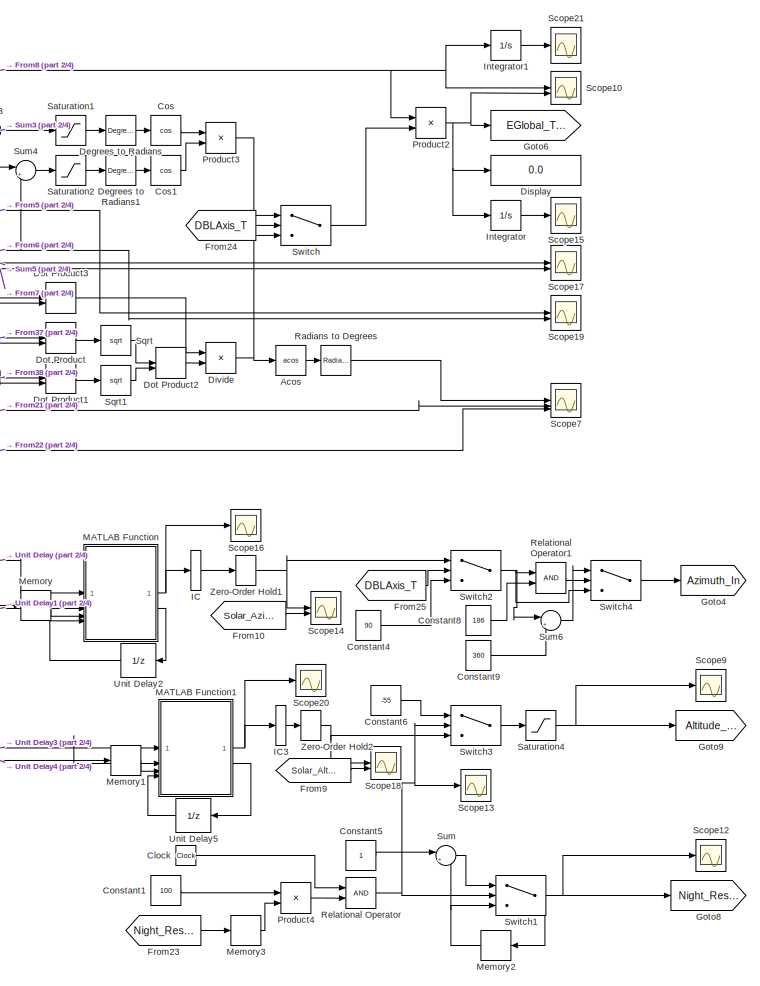
[diagram: root canvas - part 1/4, top right region]
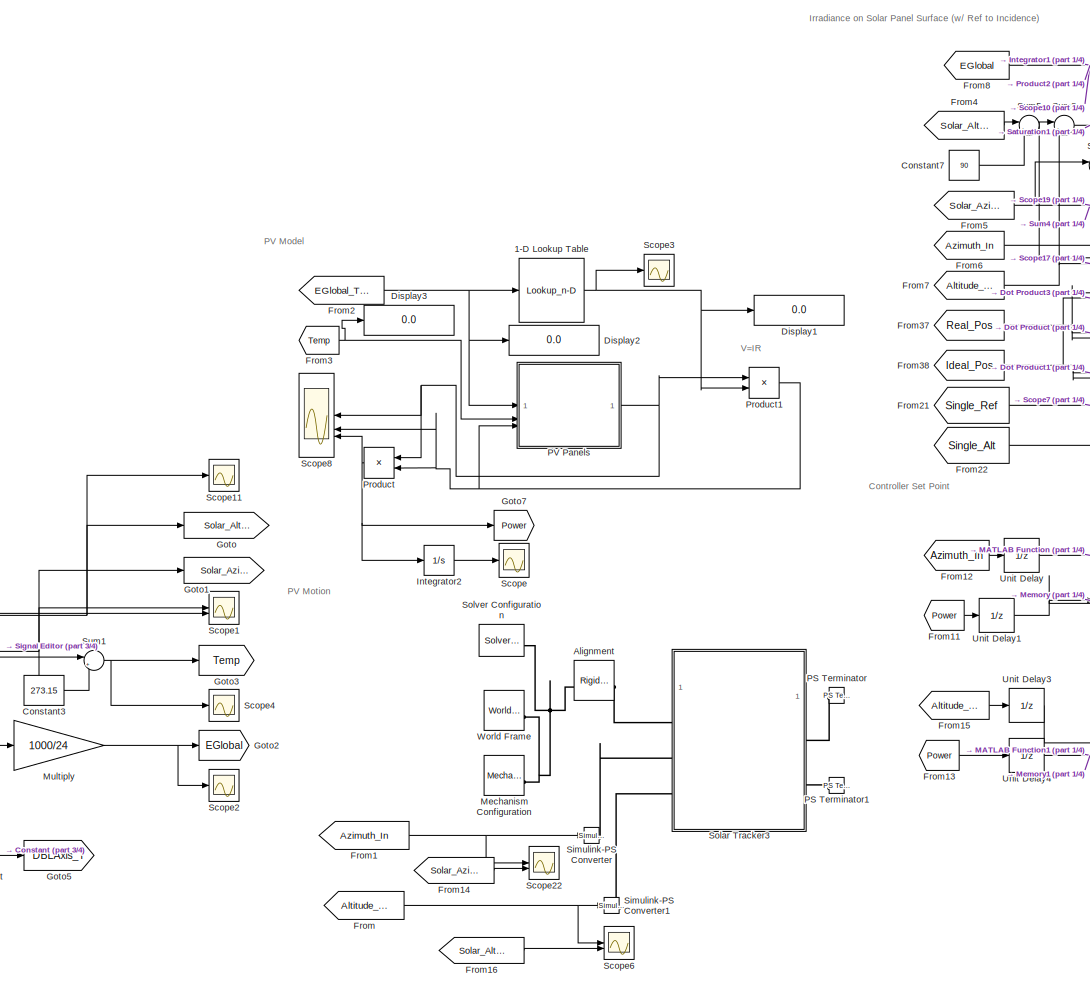
[diagram: root canvas - part 2/4, top center region]
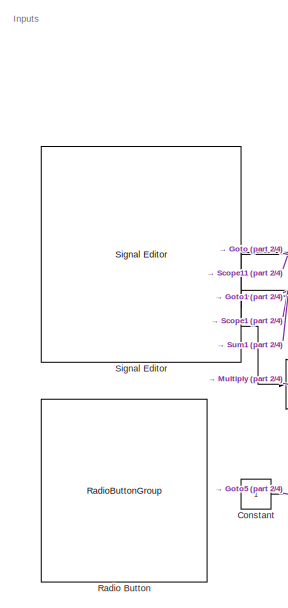
[diagram: root canvas - part 3/4, middle left region]
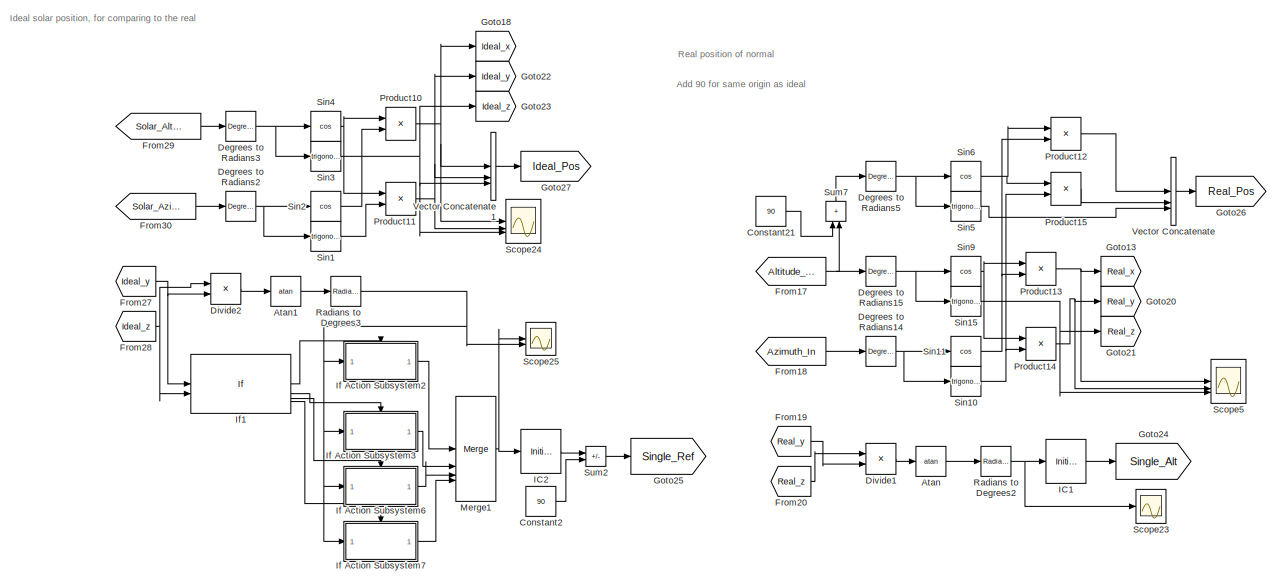
[diagram: root canvas - part 4/4, bottom center region]
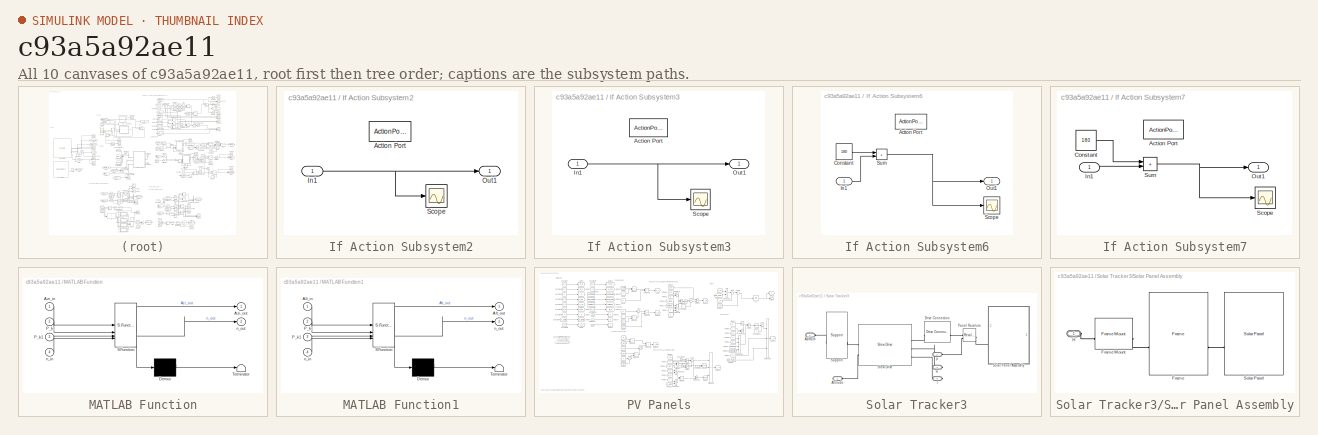
[diagram: thumbnail index - all 10 canvases of the model, root first then tree order]
MODEL slx_c93a5a92ae11
KIND model
CONFIG AbsTol = auto
CONFIG EnableMultiTasking = off
CONFIG FixedStep = auto
CONFIG MaxStep = auto
CONFIG MinStep = auto
CONFIG RelTol = 1e-3
CONFIG SampleTimeConstraint = Unconstrained
CONFIG SolverName = ode23
CONFIG StartTime = 0.0
CONFIG StopTime = 1200
BLOCK [Lookup_n-D] 1-D Lookup Table
  BreakpointsForDimension1 = [LookupR(:,1)]
  InputPortMap = u0
  InternalRulePriority = Speed
  NumberOfTableDimensions = 1
  RndMeth = Simplest
  Table = [LookupR(:,2)]
BLOCK [Trigonometry] Acos
  Operator = acos
BLOCK [Reference] Alignment  REF=sm_lib/Frames and
Transforms/Rigid
Transform
  SourceBlock = sm_lib/Frames and\nTransforms/Rigid\nTransform
  SourceType = Rigid\nTransform
BLOCK [Trigonometry] Atan
  Operator = atan
BLOCK [Trigonometry] Atan1
  Operator = atan
BLOCK [Clock] Clock
BLOCK [Constant] Constant
BLOCK [Constant] Constant1
  Value = 100
BLOCK [Constant] Constant2
  Value = 90
BLOCK [Constant] Constant21
  Value = 90
BLOCK [Constant] Constant3
  Value = 273.15
BLOCK [Constant] Constant4
  Value = 90
BLOCK [Constant] Constant5
BLOCK [Constant] Constant6
  Value = -55
BLOCK [Constant] Constant7
  Value = 90
BLOCK [Constant] Constant8
  Value = 186
BLOCK [Constant] Constant9
  Value = 360
BLOCK [Trigonometry] Cos
  Operator = cos
BLOCK [Trigonometry] Cos1
  Operator = cos
BLOCK [Reference] Degrees to Radians  REF=simulink_extras/Transformations/Degrees to
Radians
  SourceBlock = simulink_extras/Transformations/Degrees to\nRadians
  SourceType = DegreesToRadians
BLOCK [Reference] Degrees to Radians1  REF=simulink_extras/Transformations/Degrees to
Radians
  SourceBlock = simulink_extras/Transformations/Degrees to\nRadians
  SourceType = DegreesToRadians
BLOCK [Reference] Degrees to Radians14  REF=simulink_extras/Transformations/Degrees to
Radians
  SourceBlock = simulink_extras/Transformations/Degrees to\nRadians
  SourceType = DegreesToRadians
BLOCK [Reference] Degrees to Radians15  REF=simulink_extras/Transformations/Degrees to
Radians
  SourceBlock = simulink_extras/Transformations/Degrees to\nRadians
  SourceType = DegreesToRadians
BLOCK [Reference] Degrees to Radians2  REF=simulink_extras/Transformations/Degrees to
Radians
  SourceBlock = simulink_extras/Transformations/Degrees to\nRadians
  SourceType = DegreesToRadians
BLOCK [Reference] Degrees to Radians3  REF=simulink_extras/Transformations/Degrees to
Radians
  SourceBlock = simulink_extras/Transformations/Degrees to\nRadians
  SourceType = DegreesToRadians
BLOCK [Reference] Degrees to Radians5  REF=simulink_extras/Transformations/Degrees to
Radians
  SourceBlock = simulink_extras/Transformations/Degrees to\nRadians
  SourceType = DegreesToRadians
BLOCK [Display] Display
  Decimation = 1
BLOCK [Display] Display1
  Decimation = 1
BLOCK [Display] Display2
  Decimation = 1
BLOCK [Display] Display3
  Decimation = 1
BLOCK [Product] Divide
  Inputs = */
BLOCK [Product] Divide1
  Inputs = */
BLOCK [Product] Divide2
  Inputs = */
BLOCK [DotProduct] Dot Product
  OutDataTypeStr = Inherit: Inherit via internal rule
BLOCK [DotProduct] Dot Product1
  OutDataTypeStr = Inherit: Inherit via internal rule
BLOCK [DotProduct] Dot Product2
  OutDataTypeStr = Inherit: Inherit via internal rule
BLOCK [DotProduct] Dot Product3
  OutDataTypeStr = Inherit: Inherit via internal rule
BLOCK [From] From
  GotoTag = Altitude_In
BLOCK [From] From1
  GotoTag = Azimuth_In
BLOCK [From] From10
  GotoTag = Solar_Azimuth
BLOCK [From] From11
  GotoTag = Power
BLOCK [From] From12
  GotoTag = Azimuth_In
BLOCK [From] From13
  GotoTag = Power
BLOCK [From] From14
  GotoTag = Solar_Azimuth
BLOCK [From] From15
  GotoTag = Altitude_In
BLOCK [From] From16
  GotoTag = Solar_Altitude
BLOCK [From] From17
  GotoTag = Altitude_In
BLOCK [From] From18
  GotoTag = Azimuth_In
BLOCK [From] From19
  GotoTag = Real_y
BLOCK [From] From2
  GotoTag = EGlobal_Track
BLOCK [From] From20
  GotoTag = Real_z
BLOCK [From] From21
  GotoTag = Single_Ref
BLOCK [From] From22
  GotoTag = Single_Alt
BLOCK [From] From23
  GotoTag = Night_Reset
BLOCK [From] From24
  GotoTag = DBLAxis_T
BLOCK [From] From25
  GotoTag = DBLAxis_T
BLOCK [From] From27
  GotoTag = Ideal_y
BLOCK [From] From28
  GotoTag = Ideal_z
BLOCK [From] From29
  GotoTag = Solar_Altitude
BLOCK [From] From3
  GotoTag = Temp
BLOCK [From] From30
  GotoTag = Solar_Azimuth
BLOCK [From] From37
  GotoTag = Real_Pos
BLOCK [From] From38
  GotoTag = Ideal_Pos
BLOCK [From] From4
  GotoTag = Solar_Altitude
BLOCK [From] From5
  GotoTag = Solar_Azimuth
BLOCK [From] From6
  GotoTag = Azimuth_In
BLOCK [From] From7
  GotoTag = Altitude_In
BLOCK [From] From8
  GotoTag = EGlobal
BLOCK [From] From9
  GotoTag = Solar_Altitude
BLOCK [Goto] Goto
  GotoTag = Solar_Altitude
BLOCK [Goto] Goto1
  GotoTag = Solar_Azimuth
BLOCK [Goto] Goto13
  GotoTag = Real_x
BLOCK [Goto] Goto18
  GotoTag = Ideal_x
BLOCK [Goto] Goto2
  GotoTag = EGlobal
BLOCK [Goto] Goto20
  GotoTag = Real_y
BLOCK [Goto] Goto21
  GotoTag = Real_z
BLOCK [Goto] Goto22
  GotoTag = Ideal_y
BLOCK [Goto] Goto23
  GotoTag = Ideal_z
BLOCK [Goto] Goto24
  GotoTag = Single_Alt
BLOCK [Goto] Goto25
  GotoTag = Single_Ref
BLOCK [Goto] Goto26
  GotoTag = Real_Pos
BLOCK [Goto] Goto27
  GotoTag = Ideal_Pos
BLOCK [Goto] Goto3
  GotoTag = Temp
BLOCK [Goto] Goto4
  GotoTag = Azimuth_In
BLOCK [Goto] Goto5
  GotoTag = DBLAxis_T
BLOCK [Goto] Goto6
  GotoTag = EGlobal_Track
BLOCK [Goto] Goto7
  GotoTag = Power
BLOCK [Goto] Goto8
  GotoTag = Night_Reset
BLOCK [Goto] Goto9
  GotoTag = Altitude_In
BLOCK [InitialCondition] IC
  Value = 0
BLOCK [InitialCondition] IC1
  Value = -60
BLOCK [InitialCondition] IC2
  Value = -60
BLOCK [InitialCondition] IC3
  Value = -60
BLOCK [SubSystem] If Action Subsystem2
  TreatAsAtomicUnit = on
BLOCK [ActionPort] If Action Subsystem2/Action Port
  ActionPortLabel = if(u1>0 & u2>0)
BLOCK [Inport] If Action Subsystem2/In1
BLOCK [Outport] If Action Subsystem2/Out1
BLOCK [Scope] If Action Subsystem2/Scope
  Floating = off
  NumInputPorts = 1
  ScopeSpecificationString = Simulink.scopes.TimeScopeBlockCfg('CurrentConfiguration', extmgr.ConfigurationSet(extmgr.Configuration('Core','General UI',true),extmgr.Configuration('Core','Source UI',true),extmgr.Configuration('Sources','WiredSimulink',true,'DataLoggingVariableName','ScopeData2'),extmgr.Configuration('Visuals','Time Domain',true,'SerializedDisplays',{struct('MinYLimReal','-11.23981','MaxYLimReal','101.22392','Y...<+1461ch>
BLOCK [SubSystem] If Action Subsystem3
  TreatAsAtomicUnit = on
BLOCK [ActionPort] If Action Subsystem3/Action Port
  ActionPortLabel = elseif(u1>0 & u2<0)
BLOCK [Inport] If Action Subsystem3/In1
BLOCK [Outport] If Action Subsystem3/Out1
BLOCK [Scope] If Action Subsystem3/Scope
  Floating = off
  NumInputPorts = 1
  ScopeSpecificationString = Simulink.scopes.TimeScopeBlockCfg('CurrentConfiguration', extmgr.ConfigurationSet(extmgr.Configuration('Core','General UI',true),extmgr.Configuration('Core','Source UI',true),extmgr.Configuration('Sources','WiredSimulink',true,'DataLoggingVariableName','ScopeData3'),extmgr.Configuration('Visuals','Time Domain',true),extmgr.Configuration('Tools','Plot Navigation',true),extmgr.Configuration('Tools',...<+40ch>
BLOCK [SubSystem] If Action Subsystem6
  TreatAsAtomicUnit = on
BLOCK [ActionPort] If Action Subsystem6/Action Port
  ActionPortLabel = elseif( u1<0 & u2<0)
BLOCK [Constant] If Action Subsystem6/Constant
  Value = 180
BLOCK [Inport] If Action Subsystem6/In1
BLOCK [Outport] If Action Subsystem6/Out1
BLOCK [Scope] If Action Subsystem6/Scope
  Floating = off
  NumInputPorts = 1
  ScopeSpecificationString = Simulink.scopes.TimeScopeBlockCfg('CurrentConfiguration', extmgr.ConfigurationSet(extmgr.Configuration('Core','General UI',true),extmgr.Configuration('Core','Source UI',true),extmgr.Configuration('Sources','WiredSimulink',true,'DataLoggingVariableName','ScopeData5'),extmgr.Configuration('Visuals','Time Domain',true,'SerializedDisplays',{struct('MinYLimReal','168.76148','MaxYLimReal','281.22741','Y...<+1465ch>
BLOCK [Sum] If Action Subsystem6/Sum
  IconShape = rectangular
BLOCK [SubSystem] If Action Subsystem7
  TreatAsAtomicUnit = on
BLOCK [ActionPort] If Action Subsystem7/Action Port
  ActionPortLabel = elseif( u1<0 & u2>0)
BLOCK [Constant] If Action Subsystem7/Constant
  Value = 180
BLOCK [Inport] If Action Subsystem7/In1
BLOCK [Outport] If Action Subsystem7/Out1
BLOCK [Scope] If Action Subsystem7/Scope
  Floating = off
  NumInputPorts = 1
  ScopeSpecificationString = Simulink.scopes.TimeScopeBlockCfg('CurrentConfiguration', extmgr.ConfigurationSet(extmgr.Configuration('Core','General UI',true),extmgr.Configuration('Core','Source UI',true),extmgr.Configuration('Sources','WiredSimulink',true,'DataLoggingVariableName','ScopeData4'),extmgr.Configuration('Visuals','Time Domain',true,'SerializedDisplays',{struct('MinYLimReal','78.7692','MaxYLimReal','191.22684','YLa...<+1457ch>
BLOCK [Sum] If Action Subsystem7/Sum
  IconShape = rectangular
BLOCK [If] If1
  ElseIfExpressions = u1>0 & u2<0, u1<0 & u2<0, u1<0 & u2>0
  IfExpression = u1>0 & u2>0
  NumInputs = 2
  ShowElse = off
BLOCK [Integrator] Integrator
BLOCK [Integrator] Integrator1
BLOCK [Integrator] Integrator2
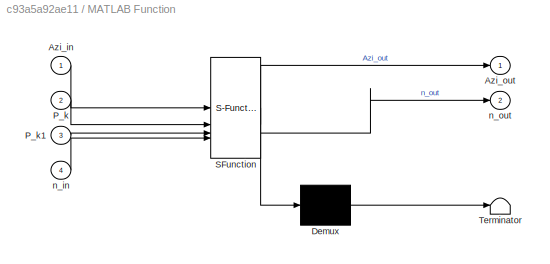
BLOCK [SubSystem] MATLAB Function
  ErrorFcn = Stateflow.Translate.translate
  PermitHierarchicalResolution = ExplicitOnly
  SFBlockType = MATLAB Function
  TreatAsAtomicUnit = on
BLOCK [Demux] MATLAB Function/ Demux 
  Outputs = 1
BLOCK [S-Function] MATLAB Function/ SFunction 
  EnableBusSupport = on
  FunctionName = sf_sfun
  PortCounts = [4 3]
  SFcnIsStateOwnerBlock = off
  SFunctionDeploymentMode = off
  Tag = Stateflow S-Function 2
BLOCK [Terminator] MATLAB Function/ Terminator 
BLOCK [Inport] MATLAB Function/Azi_in
BLOCK [Outport] MATLAB Function/Azi_out
BLOCK [Inport] MATLAB Function/P_k
  Port = 2
BLOCK [Inport] MATLAB Function/P_k1
  Port = 3
BLOCK [Inport] MATLAB Function/n_in
  Port = 4
BLOCK [Outport] MATLAB Function/n_out
  Port = 2
BLOCK [SubSystem] MATLAB Function1
  ErrorFcn = Stateflow.Translate.translate
  PermitHierarchicalResolution = ExplicitOnly
  SFBlockType = MATLAB Function
  TreatAsAtomicUnit = on
BLOCK [Demux] MATLAB Function1/ Demux 
  Outputs = 1
BLOCK [S-Function] MATLAB Function1/ SFunction 
  EnableBusSupport = on
  FunctionName = sf_sfun
  PortCounts = [4 3]
  SFcnIsStateOwnerBlock = off
  SFunctionDeploymentMode = off
  Tag = Stateflow S-Function 1
BLOCK [Terminator] MATLAB Function1/ Terminator 
BLOCK [Inport] MATLAB Function1/Alt_in
BLOCK [Outport] MATLAB Function1/Alt_out
BLOCK [Inport] MATLAB Function1/P_k
  Port = 2
BLOCK [Inport] MATLAB Function1/P_k1
  Port = 3
BLOCK [Inport] MATLAB Function1/n_in
  Port = 4
BLOCK [Outport] MATLAB Function1/n_out
  Port = 2
BLOCK [Reference] Mechanism Configuration  REF=sm_lib/Utilities/Mechanism
Configuration
  SourceBlock = sm_lib/Utilities/Mechanism\nConfiguration
  SourceType = Mechanism\nConfiguration
BLOCK [Memory] Memory
BLOCK [Memory] Memory1
BLOCK [Memory] Memory2
  InitialCondition = 1
BLOCK [Memory] Memory3
  InitialCondition = 1
BLOCK [Merge] Merge1
  Inputs = 4
BLOCK [Gain] Multiply
  Gain = 1000/24
BLOCK [Reference] PS Terminator  REF=fl_lib/Physical Signals/Sinks/PS Terminator
  SourceBlock = fl_lib/Physical Signals/Sinks/PS Terminator
  SourceType = PS Terminator
BLOCK [Reference] PS Terminator1  REF=fl_lib/Physical Signals/Sinks/PS Terminator
  SourceBlock = fl_lib/Physical Signals/Sinks/PS Terminator
  SourceType = PS Terminator
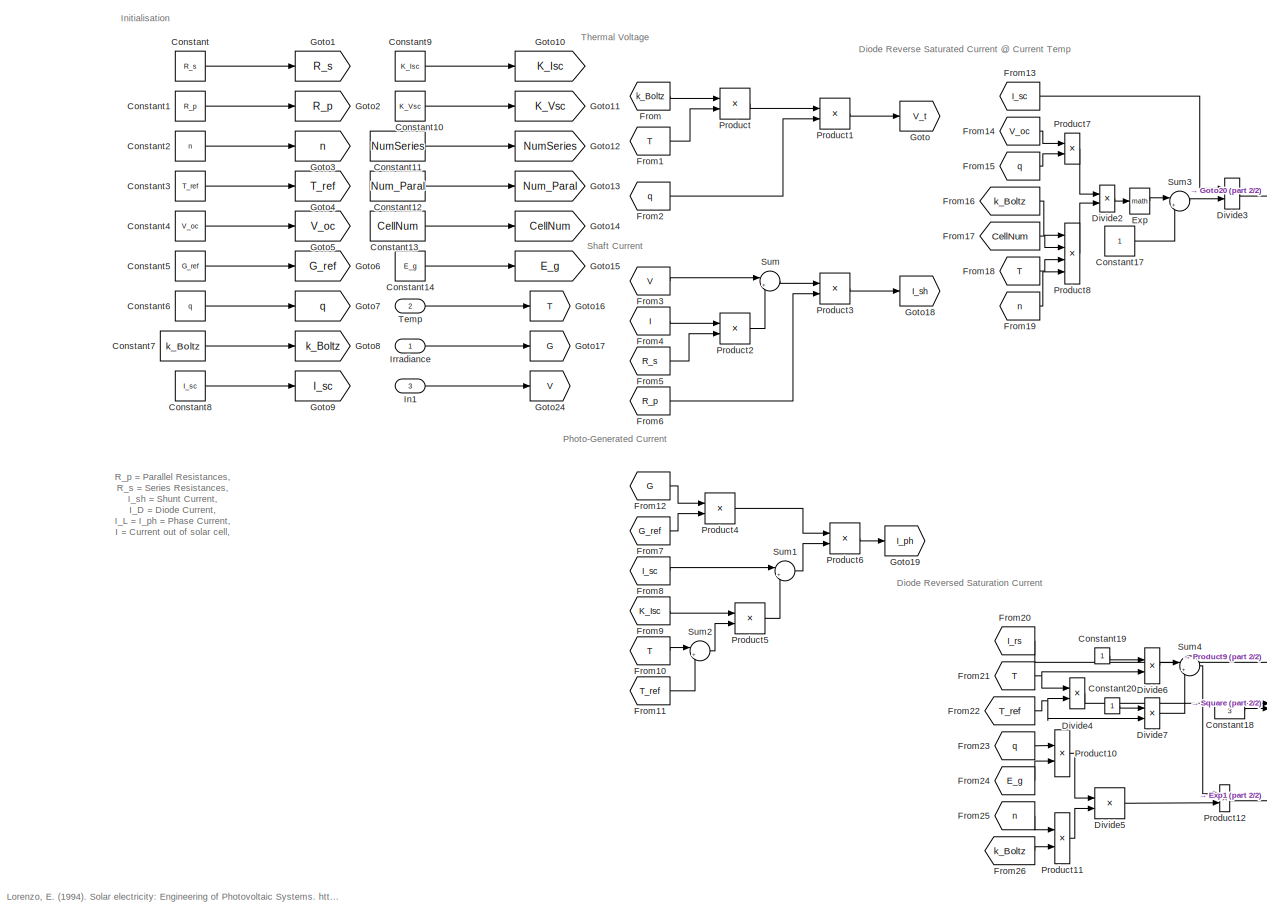
[diagram: PV Panels - part 1/2, center side, full height]
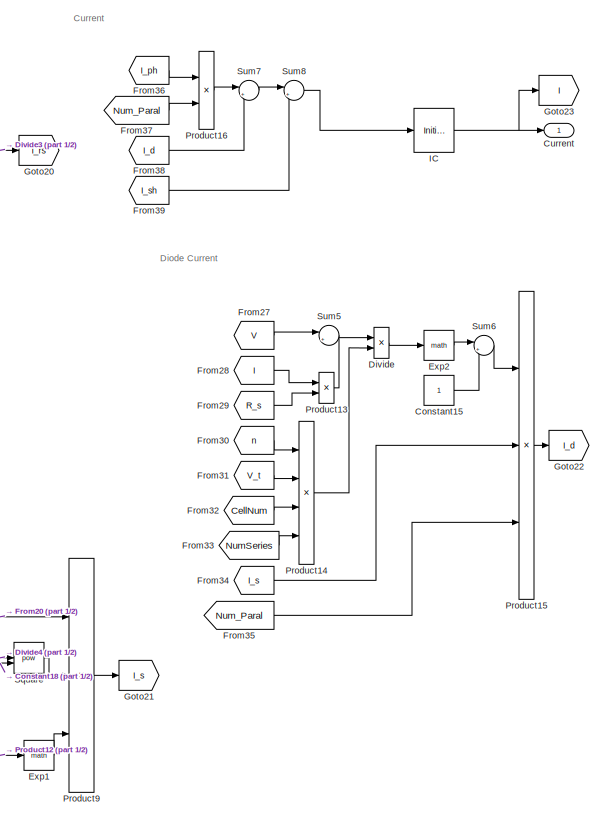
[diagram: PV Panels - part 2/2, right side, full height]
BLOCK [SubSystem] PV Panels
BLOCK [Constant] PV Panels/Constant
  Value = R_s
BLOCK [Constant] PV Panels/Constant1
  Value = R_p
BLOCK [Constant] PV Panels/Constant10
  Value = K_Vsc
BLOCK [Constant] PV Panels/Constant11
  Value = NumSeries
BLOCK [Constant] PV Panels/Constant12
  Value = Num_Paral
BLOCK [Constant] PV Panels/Constant13
  Value = CellNum
BLOCK [Constant] PV Panels/Constant14
  Value = E_g
BLOCK [Constant] PV Panels/Constant15
BLOCK [Constant] PV Panels/Constant17
BLOCK [Constant] PV Panels/Constant18
  Value = 3
BLOCK [Constant] PV Panels/Constant19
BLOCK [Constant] PV Panels/Constant2
  Value = n
BLOCK [Constant] PV Panels/Constant20
BLOCK [Constant] PV Panels/Constant3
  Value = T_ref
BLOCK [Constant] PV Panels/Constant4
  Value = V_oc
BLOCK [Constant] PV Panels/Constant5
  Value = G_ref
BLOCK [Constant] PV Panels/Constant6
  Value = q
BLOCK [Constant] PV Panels/Constant7
  Value = k_Boltz
BLOCK [Constant] PV Panels/Constant8
  Value = I_sc
BLOCK [Constant] PV Panels/Constant9
  Value = K_Isc
BLOCK [Outport] PV Panels/Current
BLOCK [Product] PV Panels/Divide
  Inputs = */
BLOCK [Product] PV Panels/Divide2
  Inputs = */
BLOCK [Product] PV Panels/Divide3
  Inputs = */
BLOCK [Product] PV Panels/Divide4
  Inputs = */
BLOCK [Product] PV Panels/Divide5
  Inputs = */
BLOCK [Product] PV Panels/Divide6
  Inputs = */
BLOCK [Product] PV Panels/Divide7
  Inputs = */
BLOCK [Math] PV Panels/Exp
BLOCK [Math] PV Panels/Exp1
BLOCK [Math] PV Panels/Exp2
BLOCK [From] PV Panels/From
  GotoTag = k_Boltz
BLOCK [From] PV Panels/From1
  GotoTag = T
BLOCK [From] PV Panels/From10
  GotoTag = T
BLOCK [From] PV Panels/From11
  GotoTag = T_ref
BLOCK [From] PV Panels/From12
  GotoTag = G
BLOCK [From] PV Panels/From13
  GotoTag = I_sc
BLOCK [From] PV Panels/From14
  GotoTag = V_oc
BLOCK [From] PV Panels/From15
  GotoTag = q
BLOCK [From] PV Panels/From16
  GotoTag = k_Boltz
BLOCK [From] PV Panels/From17
  GotoTag = CellNum
BLOCK [From] PV Panels/From18
  GotoTag = T
BLOCK [From] PV Panels/From19
  GotoTag = n
BLOCK [From] PV Panels/From2
  GotoTag = q
BLOCK [From] PV Panels/From20
  GotoTag = I_rs
BLOCK [From] PV Panels/From21
  GotoTag = T
BLOCK [From] PV Panels/From22
  GotoTag = T_ref
BLOCK [From] PV Panels/From23
  GotoTag = q
BLOCK [From] PV Panels/From24
  GotoTag = E_g
BLOCK [From] PV Panels/From25
  GotoTag = n
BLOCK [From] PV Panels/From26
  GotoTag = k_Boltz
BLOCK [From] PV Panels/From27
  GotoTag = V
BLOCK [From] PV Panels/From28
  GotoTag = I
BLOCK [From] PV Panels/From29
  GotoTag = R_s
BLOCK [From] PV Panels/From3
  GotoTag = V
BLOCK [From] PV Panels/From30
  GotoTag = n
BLOCK [From] PV Panels/From31
  GotoTag = V_t
BLOCK [From] PV Panels/From32
  GotoTag = CellNum
BLOCK [From] PV Panels/From33
  GotoTag = NumSeries
BLOCK [From] PV Panels/From34
  GotoTag = I_s
BLOCK [From] PV Panels/From35
  GotoTag = Num_Paral
BLOCK [From] PV Panels/From36
  GotoTag = I_ph
BLOCK [From] PV Panels/From37
  GotoTag = Num_Paral
BLOCK [From] PV Panels/From38
  GotoTag = I_d
BLOCK [From] PV Panels/From39
  GotoTag = I_sh
BLOCK [From] PV Panels/From4
  GotoTag = I
BLOCK [From] PV Panels/From5
  GotoTag = R_s
BLOCK [From] PV Panels/From6
  GotoTag = R_p
BLOCK [From] PV Panels/From7
  GotoTag = G_ref
BLOCK [From] PV Panels/From8
  GotoTag = I_sc
BLOCK [From] PV Panels/From9
  GotoTag = K_Isc
BLOCK [Goto] PV Panels/Goto
  GotoTag = V_t
BLOCK [Goto] PV Panels/Goto1
  GotoTag = R_s
BLOCK [Goto] PV Panels/Goto10
  GotoTag = K_Isc
BLOCK [Goto] PV Panels/Goto11
  GotoTag = K_Vsc
BLOCK [Goto] PV Panels/Goto12
  GotoTag = NumSeries
BLOCK [Goto] PV Panels/Goto13
  GotoTag = Num_Paral
BLOCK [Goto] PV Panels/Goto14
  GotoTag = CellNum
BLOCK [Goto] PV Panels/Goto15
  GotoTag = E_g
BLOCK [Goto] PV Panels/Goto16
  GotoTag = T
BLOCK [Goto] PV Panels/Goto17
  GotoTag = G
BLOCK [Goto] PV Panels/Goto18
  GotoTag = I_sh
BLOCK [Goto] PV Panels/Goto19
  GotoTag = I_ph
BLOCK [Goto] PV Panels/Goto2
  GotoTag = R_p
BLOCK [Goto] PV Panels/Goto20
  GotoTag = I_rs
BLOCK [Goto] PV Panels/Goto21
  GotoTag = I_s
BLOCK [Goto] PV Panels/Goto22
  GotoTag = I_d
BLOCK [Goto] PV Panels/Goto23
  GotoTag = I
BLOCK [Goto] PV Panels/Goto24
  GotoTag = V
BLOCK [Goto] PV Panels/Goto3
  GotoTag = n
BLOCK [Goto] PV Panels/Goto4
  GotoTag = T_ref
BLOCK [Goto] PV Panels/Goto5
  GotoTag = V_oc
BLOCK [Goto] PV Panels/Goto6
  GotoTag = G_ref
BLOCK [Goto] PV Panels/Goto7
  GotoTag = q
BLOCK [Goto] PV Panels/Goto8
  GotoTag = k_Boltz
BLOCK [Goto] PV Panels/Goto9
  GotoTag = I_sc
BLOCK [InitialCondition] PV Panels/IC
  Value = 0
BLOCK [Inport] PV Panels/In1
  Port = 3
BLOCK [Inport] PV Panels/Irradiance
BLOCK [Product] PV Panels/Product
BLOCK [Product] PV Panels/Product1
  Inputs = */
BLOCK [Product] PV Panels/Product10
BLOCK [Product] PV Panels/Product11
BLOCK [Product] PV Panels/Product12
BLOCK [Product] PV Panels/Product13
BLOCK [Product] PV Panels/Product14
  Inputs = 4
BLOCK [Product] PV Panels/Product15
  Inputs = 3
BLOCK [Product] PV Panels/Product16
BLOCK [Product] PV Panels/Product2
BLOCK [Product] PV Panels/Product3
  Inputs = */
BLOCK [Product] PV Panels/Product4
  Inputs = */
BLOCK [Product] PV Panels/Product5
BLOCK [Product] PV Panels/Product6
BLOCK [Product] PV Panels/Product7
BLOCK [Product] PV Panels/Product8
  Inputs = 4
BLOCK [Product] PV Panels/Product9
  Inputs = 3
BLOCK [Math] PV Panels/Square
  Operator = pow
BLOCK [Sum] PV Panels/Sum
  Inputs = |++
BLOCK [Sum] PV Panels/Sum1
  Inputs = |++
BLOCK [Sum] PV Panels/Sum2
  Inputs = |+-
BLOCK [Sum] PV Panels/Sum3
  Inputs = |+-
BLOCK [Sum] PV Panels/Sum4
  Inputs = |+-
BLOCK [Sum] PV Panels/Sum5
  Inputs = |++
BLOCK [Sum] PV Panels/Sum6
  Inputs = |+-
BLOCK [Sum] PV Panels/Sum7
  Inputs = |+-
BLOCK [Sum] PV Panels/Sum8
  Inputs = |+-
BLOCK [Inport] PV Panels/Temp
  Port = 2
BLOCK [Product] Product
BLOCK [Product] Product1
BLOCK [Product] Product10
BLOCK [Product] Product11
BLOCK [Product] Product12
BLOCK [Product] Product13
BLOCK [Product] Product14
BLOCK [Product] Product15
BLOCK [Product] Product2
BLOCK [Product] Product3
BLOCK [Product] Product4
BLOCK [Reference] Radians to Degrees  REF=simulink_extras/Transformations/Radians
to Degrees
  SourceBlock = simulink_extras/Transformations/Radians\nto Degrees
  SourceType = RadiansToDegrees
BLOCK [Reference] Radians to Degrees2  REF=simulink_extras/Transformations/Radians
to Degrees
  SourceBlock = simulink_extras/Transformations/Radians\nto Degrees
  SourceType = RadiansToDegrees
BLOCK [Reference] Radians to Degrees3  REF=simulink_extras/Transformations/Radians
to Degrees
  SourceBlock = simulink_extras/Transformations/Radians\nto Degrees
  SourceType = RadiansToDegrees
BLOCK [RadioButtonGroup] Radio Button
  ButtonGroupName = Tracking Configuration
  LabelPosition = Hide
  SelectedLabel = Double Axis
BLOCK [RelationalOperator] Relational Operator
  InputSameDT = off
  OutDataTypeStr = boolean
  RndMeth = Simplest
BLOCK [RelationalOperator] Relational Operator1
  InputSameDT = off
  OutDataTypeStr = boolean
  RndMeth = Simplest
BLOCK [Saturate] Saturation1
  LowerLimit = -90
  UpperLimit = 90
BLOCK [Saturate] Saturation2
  LowerLimit = -90
  UpperLimit = 90
BLOCK [Saturate] Saturation4
  LowerLimit = -60
  UpperLimit = 60
BLOCK [Scope] Scope
  Floating = off
  NumInputPorts = 1
  ScopeSpecificationString = Simulink.scopes.TimeScopeBlockCfg('CurrentConfiguration', extmgr.ConfigurationSet(extmgr.Configuration('Core','General UI',true,'FigureColor',[1 1 1]),extmgr.Configuration('Core','Source UI',true),extmgr.Configuration('Sources','WiredSimulink',true,'DataLoggingVariableName','ScopeData3'),extmgr.Configuration('Visuals','Time Domain',true,'SerializedDisplays',{struct('MinYLimReal','-5904.21166','Max...<+1709ch>
BLOCK [Scope] Scope1
  Floating = off
  NumInputPorts = 2
  ScopeSpecificationString = Simulink.scopes.TimeScopeBlockCfg('CurrentConfiguration', extmgr.ConfigurationSet(extmgr.Configuration('Core','General UI',true),extmgr.Configuration('Core','Source UI',true),extmgr.Configuration('Sources','WiredSimulink',true,'DataLoggingVariableName','ScopeData1'),extmgr.Configuration('Visuals','Time Domain',true,'SerializedDisplays',{struct('MinYLimReal','-244.3479','MaxYLimReal','399.37199','Y...<+1539ch>
BLOCK [Scope] Scope10
  Floating = off
  NumInputPorts = 2
  ScopeSpecificationString = Simulink.scopes.TimeScopeBlockCfg('CurrentConfiguration', extmgr.ConfigurationSet(extmgr.Configuration('Core','General UI',true,'FigureColor',[1 1 1]),extmgr.Configuration('Core','Source UI',true),extmgr.Configuration('Sources','WiredSimulink',true,'DataLoggingVariableName','ScopeData4'),extmgr.Configuration('Visuals','Time Domain',true,'SerializedDisplays',{struct('MinYLimReal','-106.47135','MaxY...<+1915ch>
BLOCK [Scope] Scope11
  Floating = off
  NumInputPorts = 1
  ScopeSpecificationString = Simulink.scopes.TimeScopeBlockCfg('CurrentConfiguration', extmgr.ConfigurationSet(extmgr.Configuration('Core','General UI',true),extmgr.Configuration('Core','Source UI',true),extmgr.Configuration('Sources','WiredSimulink',true,'DataLoggingVariableName','ScopeData5'),extmgr.Configuration('Visuals','Time Domain',true,'SerializedDisplays',{struct('MinYLimReal','-103.78692','MaxYLimReal','103.89855','...<+1559ch>
BLOCK [Scope] Scope12
  Floating = off
  NumInputPorts = 1
  ScopeSpecificationString = Simulink.scopes.TimeScopeBlockCfg('CurrentConfiguration', extmgr.ConfigurationSet(extmgr.Configuration('Core','General UI',true),extmgr.Configuration('Core','Source UI',true),extmgr.Configuration('Sources','WiredSimulink',true,'DataLoggingVariableName','ScopeData1'),extmgr.Configuration('Visuals','Time Domain',true,'SerializedDisplays',{struct('MinYLimReal','-0.5','MaxYLimReal','14.5','YLabelReal'...<+1465ch>
BLOCK [Scope] Scope13
  Floating = off
  NumInputPorts = 1
  ScopeSpecificationString = Simulink.scopes.TimeScopeBlockCfg('CurrentConfiguration', extmgr.ConfigurationSet(extmgr.Configuration('Core','General UI',true,'FigureColor',[1 1 1]),extmgr.Configuration('Core','Source UI',true),extmgr.Configuration('Sources','WiredSimulink',true,'DataLoggingVariableName','ScopeData2'),extmgr.Configuration('Visuals','Time Domain',true,'SerializedDisplays',{struct('MinYLimReal','-0.125','MaxYLimR...<+1547ch>
BLOCK [Scope] Scope14
  Floating = off
  NumInputPorts = 2
  ScopeSpecificationString = Simulink.scopes.TimeScopeBlockCfg('CurrentConfiguration', extmgr.ConfigurationSet(extmgr.Configuration('Core','General UI',true,'FigureColor',[1 1 1]),extmgr.Configuration('Core','Source UI',true),extmgr.Configuration('Sources','WiredSimulink',true,'DataLoggingVariableName','ScopeData8'),extmgr.Configuration('Visuals','Time Domain',true,'SerializedDisplays',{struct('MinYLimReal','-224.92484','MaxY...<+1825ch>
BLOCK [Scope] Scope15
  Floating = off
  NumInputPorts = 1
  ScopeSpecificationString = Simulink.scopes.TimeScopeBlockCfg('CurrentConfiguration', extmgr.ConfigurationSet(extmgr.Configuration('Core','General UI',true,'FigureColor',[1 1 1]),extmgr.Configuration('Core','Source UI',true),extmgr.Configuration('Sources','WiredSimulink',true,'DataLoggingVariableName','ScopeData1'),extmgr.Configuration('Visuals','Time Domain',true,'SerializedDisplays',{struct('MinYLimReal','-31561.27173','Ma...<+1608ch>
BLOCK [Scope] Scope16
  Floating = off
  NumInputPorts = 1
  ScopeSpecificationString = Simulink.scopes.TimeScopeBlockCfg('CurrentConfiguration', extmgr.ConfigurationSet(extmgr.Configuration('Core','General UI',true),extmgr.Configuration('Core','Source UI',true),extmgr.Configuration('Sources','WiredSimulink',true,'DataLoggingVariableName','ScopeData10'),extmgr.Configuration('Visuals','Time Domain',true),extmgr.Configuration('Tools','Plot Navigation',true),extmgr.Configuration('Tools'...<+41ch>
BLOCK [Scope] Scope17
  Floating = off
  NumInputPorts = 2
  ScopeSpecificationString = Simulink.scopes.TimeScopeBlockCfg('CurrentConfiguration', extmgr.ConfigurationSet(extmgr.Configuration('Core','General UI',true,'FigureColor',[1 1 1]),extmgr.Configuration('Core','Source UI',true),extmgr.Configuration('Sources','WiredSimulink',true,'DataLoggingVariableName','ScopeData4'),extmgr.Configuration('Visuals','Time Domain',true,'SerializedDisplays',{struct('MinYLimReal','-194.64566','MaxY...<+2013ch>
BLOCK [Scope] Scope18
  Floating = off
  NumInputPorts = 2
  ScopeSpecificationString = Simulink.scopes.TimeScopeBlockCfg('CurrentConfiguration', extmgr.ConfigurationSet(extmgr.Configuration('Core','General UI',true,'FigureColor',[1 1 1]),extmgr.Configuration('Core','Source UI',true),extmgr.Configuration('Sources','WiredSimulink',true,'DataLoggingVariableName','ScopeData12'),extmgr.Configuration('Visuals','Time Domain',true,'SerializedDisplays',{struct('MinYLimReal','-80.89125','MaxY...<+1841ch>
BLOCK [Scope] Scope19
  Floating = off
  NumInputPorts = 2
  ScopeSpecificationString = Simulink.scopes.TimeScopeBlockCfg('CurrentConfiguration', extmgr.ConfigurationSet(extmgr.Configuration('Core','General UI',true,'FigureColor',[1 1 1]),extmgr.Configuration('Core','Source UI',true),extmgr.Configuration('Sources','WiredSimulink',true,'DataLoggingVariableName','ScopeData5'),extmgr.Configuration('Visuals','Time Domain',true,'SerializedDisplays',{struct('MinYLimReal','-239.87667','MaxY...<+2021ch>
BLOCK [Scope] Scope2
  Floating = off
  NumInputPorts = 1
  ScopeSpecificationString = Simulink.scopes.TimeScopeBlockCfg('CurrentConfiguration', extmgr.ConfigurationSet(extmgr.Configuration('Core','General UI',true),extmgr.Configuration('Core','Source UI',true),extmgr.Configuration('Sources','WiredSimulink',true,'DataLoggingVariableName','ScopeData1'),extmgr.Configuration('Visuals','Time Domain',true,'SerializedDisplays',{struct('MinYLimReal','-4.21181','MaxYLimReal','37.90625','YLa...<+1489ch>
BLOCK [Scope] Scope20
  Floating = off
  NumInputPorts = 1
  ScopeSpecificationString = Simulink.scopes.TimeScopeBlockCfg('CurrentConfiguration', extmgr.ConfigurationSet(extmgr.Configuration('Core','General UI',true),extmgr.Configuration('Core','Source UI',true),extmgr.Configuration('Sources','WiredSimulink',true,'DataLoggingVariableName','ScopeData14'),extmgr.Configuration('Visuals','Time Domain',true,'SerializedDisplays',{struct('MinYLimReal','-82.125','MaxYLimReal','79.125','YLabe...<+1467ch>
BLOCK [Scope] Scope21
  Floating = off
  NumInputPorts = 1
  ScopeSpecificationString = Simulink.scopes.TimeScopeBlockCfg('CurrentConfiguration', extmgr.ConfigurationSet(extmgr.Configuration('Core','General UI',true,'FigureColor',[1 1 1]),extmgr.Configuration('Core','Source UI',true),extmgr.Configuration('Sources','WiredSimulink',true,'DataLoggingVariableName','ScopeData2'),extmgr.Configuration('Visuals','Time Domain',true,'SerializedDisplays',{struct('MinYLimReal','-31880.74127','Ma...<+1607ch>
BLOCK [Scope] Scope22
  Floating = off
  NumInputPorts = 2
  ScopeSpecificationString = Simulink.scopes.TimeScopeBlockCfg('CurrentConfiguration', extmgr.ConfigurationSet(extmgr.Configuration('Core','General UI',true,'FigureColor',[1 1 1]),extmgr.Configuration('Core','Source UI',true),extmgr.Configuration('Sources','WiredSimulink',true,'DataLoggingVariableName','ScopeData2'),extmgr.Configuration('Visuals','Time Domain',true,'SerializedDisplays',{struct('MinYLimReal','-224.92484','MaxY...<+1988ch>
BLOCK [Scope] Scope23
  Floating = off
  NumInputPorts = 1
  ScopeSpecificationString = Simulink.scopes.TimeScopeBlockCfg('CurrentConfiguration', extmgr.ConfigurationSet(extmgr.Configuration('Core','General UI',true),extmgr.Configuration('Core','Source UI',true),extmgr.Configuration('Sources','WiredSimulink',true,'DataLoggingVariableName','ScopeData1'),extmgr.Configuration('Visuals','Time Domain',true,'SerializedDisplays',{struct('MinYLimReal','-112.28366','MaxYLimReal','110.55293','...<+1550ch>
BLOCK [Scope] Scope24
  Floating = off
  NumInputPorts = 3
  ScopeSpecificationString = Simulink.scopes.TimeScopeBlockCfg('CurrentConfiguration', extmgr.ConfigurationSet(extmgr.Configuration('Core','General UI',true,'FigureColor',[1 1 1]),extmgr.Configuration('Core','Source UI',true),extmgr.Configuration('Sources','WiredSimulink',true,'DataLoggingVariableName','ScopeData2'),extmgr.Configuration('Visuals','Time Domain',true,'SerializedDisplays',{struct('MinYLimReal','-1.247','MaxYLimR...<+2028ch>
BLOCK [Scope] Scope25
  Floating = off
  NumInputPorts = 2
  ScopeSpecificationString = Simulink.scopes.TimeScopeBlockCfg('CurrentConfiguration', extmgr.ConfigurationSet(extmgr.Configuration('Core','General UI',true),extmgr.Configuration('Core','Source UI',true),extmgr.Configuration('Sources','WiredSimulink',true,'DataLoggingVariableName','ScopeData3'),extmgr.Configuration('Visuals','Time Domain',true,'SerializedDisplays',{struct('MinYLimReal','-134.99344','MaxYLimReal','314.94096','...<+1559ch>
BLOCK [Scope] Scope3
  Floating = off
  NumInputPorts = 1
  ScopeSpecificationString = Simulink.scopes.TimeScopeBlockCfg('CurrentConfiguration', extmgr.ConfigurationSet(extmgr.Configuration('Core','General UI',true),extmgr.Configuration('Core','Source UI',true),extmgr.Configuration('Sources','WiredSimulink',true,'DataLoggingVariableName','ScopeData1'),extmgr.Configuration('Visuals','Time Domain',true,'SerializedDisplays',{struct('MinYLimReal','14.93994','MaxYLimReal','14.94057','YLa...<+1484ch>
BLOCK [Scope] Scope4
  Floating = off
  NumInputPorts = 1
  ScopeSpecificationString = Simulink.scopes.TimeScopeBlockCfg('CurrentConfiguration', extmgr.ConfigurationSet(extmgr.Configuration('Core','General UI',true),extmgr.Configuration('Core','Source UI',true),extmgr.Configuration('Sources','WiredSimulink',true,'DataLoggingVariableName','ScopeData3'),extmgr.Configuration('Visuals','Time Domain',true),extmgr.Configuration('Tools','Plot Navigation',true),extmgr.Configuration('Tools',...<+40ch>
BLOCK [Scope] Scope5
  Floating = off
  NumInputPorts = 3
  ScopeSpecificationString = Simulink.scopes.TimeScopeBlockCfg('CurrentConfiguration', extmgr.ConfigurationSet(extmgr.Configuration('Core','General UI',true,'FigureColor',[1 1 1]),extmgr.Configuration('Core','Source UI',true),extmgr.Configuration('Sources','WiredSimulink',true,'DataLoggingVariableName','ScopeData4'),extmgr.Configuration('Visuals','Time Domain',true,'SerializedDisplays',{struct('MinYLimReal','-1.19829','MaxYLi...<+2068ch>
BLOCK [Scope] Scope6
  Floating = off
  NumInputPorts = 2
  ScopeSpecificationString = Simulink.scopes.TimeScopeBlockCfg('CurrentConfiguration', extmgr.ConfigurationSet(extmgr.Configuration('Core','General UI',true,'FigureColor',[1 1 1]),extmgr.Configuration('Core','Source UI',true),extmgr.Configuration('Sources','WiredSimulink',true,'DataLoggingVariableName','ScopeData1'),extmgr.Configuration('Visuals','Time Domain',true,'SerializedDisplays',{struct('MinYLimReal','-103.78692','MaxY...<+2007ch>
BLOCK [Scope] Scope7
  Floating = off
  NumInputPorts = 3
  ScopeSpecificationString = Simulink.scopes.TimeScopeBlockCfg('CurrentConfiguration', extmgr.ConfigurationSet(extmgr.Configuration('Core','General UI',true,'FigureColor',[1 1 1]),extmgr.Configuration('Core','Source UI',true),extmgr.Configuration('Sources','WiredSimulink',true,'DataLoggingVariableName','ScopeData5'),extmgr.Configuration('Visuals','Time Domain',true,'SerializedDisplays',{struct('MinYLimReal','-224.98632','MaxY...<+2130ch>
BLOCK [Scope] Scope8
  Floating = off
  NumInputPorts = 3
  ScopeSpecificationString = Simulink.scopes.TimeScopeBlockCfg('CurrentConfiguration', extmgr.ConfigurationSet(extmgr.Configuration('Core','General UI',true,'FigureColor',[1 1 1]),extmgr.Configuration('Core','Source UI',true),extmgr.Configuration('Sources','WiredSimulink',true,'DataLoggingVariableName','ScopeData1'),extmgr.Configuration('Visuals','Time Domain',true,'SerializedDisplays',{struct('MinYLimReal','-16.06937','MaxYL...<+2187ch>
BLOCK [Scope] Scope9
  Floating = off
  NumInputPorts = 1
  ScopeSpecificationString = Simulink.scopes.TimeScopeBlockCfg('CurrentConfiguration', extmgr.ConfigurationSet(extmgr.Configuration('Core','General UI',true),extmgr.Configuration('Core','Source UI',true),extmgr.Configuration('Sources','WiredSimulink',true,'DataLoggingVariableName','ScopeData6'),extmgr.Configuration('Visuals','Time Domain',true,'SerializedDisplays',{struct('MinYLimReal','-63.375','MaxYLimReal','-29.625','YLabe...<+1483ch>
BLOCK [Reference] Signal Editor  REF=SignalEditorBlockLib/Signal Editor
  LibrarySourceBlock = simulink/Sources/Signal Editor
  SourceBlock = SignalEditorBlockLib/Signal Editor
  SourceType = SignalEditor
  UserDataPersistent = on
BLOCK [Reference] Simulink-PS Converter  REF=nesl_utility/Simulink-PS
Converter
  SourceBlock = nesl_utility/Simulink-PS\nConverter
  SourceType = Simulink-PS\nConverter
BLOCK [Reference] Simulink-PS Converter1  REF=nesl_utility/Simulink-PS
Converter
  SourceBlock = nesl_utility/Simulink-PS\nConverter
  SourceType = Simulink-PS\nConverter
BLOCK [Trigonometry] Sin1
BLOCK [Trigonometry] Sin10
BLOCK [Trigonometry] Sin11
  Operator = cos
BLOCK [Trigonometry] Sin15
BLOCK [Trigonometry] Sin2
  Operator = cos
BLOCK [Trigonometry] Sin3
BLOCK [Trigonometry] Sin4
  Operator = cos
BLOCK [Trigonometry] Sin5
BLOCK [Trigonometry] Sin6
  Operator = cos
BLOCK [Trigonometry] Sin9
  Operator = cos
BLOCK [SubSystem] Solar Tracker3
BLOCK [PMIOPort] Solar Tracker3/Altitude
  Port = 2
  Side = Left
BLOCK [PMIOPort] Solar Tracker3/Azimuth
  Side = Left
BLOCK [Reference] Solar Tracker3/Drive Connection  REF=WormAndGearConstraintLibrary/Drive Connection
  SourceBlock = WormAndGearConstraintLibrary/Drive Connection
  SourceType = Drive Connection
BLOCK [Reference] Solar Tracker3/Panel Revolute  REF=sm_lib/Joints/Revolute Joint
  SourceBlock = sm_lib/Joints/Revolute Joint
  SourceType = Revolute Joint
BLOCK [Reference] Solar Tracker3/Slew Drive  REF=WormAndGearConstraintLibrary/Slew Drive
  SourceBlock = WormAndGearConstraintLibrary/Slew Drive
  SourceType = Slew Drive
BLOCK [SubSystem] Solar Tracker3/Solar Panel Assembly
BLOCK [Reference] Solar Tracker3/Solar Panel Assembly/Frame  REF=WormAndGearConstraintLibrary/Frame
  SourceBlock = WormAndGearConstraintLibrary/Frame
  SourceType = Frame
BLOCK [Reference] Solar Tracker3/Solar Panel Assembly/Frame Mount  REF=WormAndGearConstraintLibrary/Frame Mount
  SourceBlock = WormAndGearConstraintLibrary/Frame Mount
  SourceType = Frame Mount
BLOCK [PMIOPort] Solar Tracker3/Solar Panel Assembly/H
  Side = Left
BLOCK [Reference] Solar Tracker3/Solar Panel Assembly/Solar Panel  REF=WormAndGearConstraintLibrary/Solar Panel
  SourceBlock = WormAndGearConstraintLibrary/Solar Panel
  SourceType = Solar Panel
BLOCK [Reference] Solar Tracker3/Support  REF=WormAndGearConstraintLibrary/Support
  SourceBlock = WormAndGearConstraintLibrary/Support
  SourceType = Support
BLOCK [PMIOPort] Solar Tracker3/p
  Port = 3
  Side = Left
BLOCK [PMIOPort] Solar Tracker3/t
  Port = 5
  Side = Right
BLOCK [PMIOPort] Solar Tracker3/w
  Port = 4
  Side = Right
BLOCK [Reference] Solver Configuration  REF=nesl_utility/Solver
Configuration
  SourceBlock = nesl_utility/Solver\nConfiguration
  SourceType = Solver\nConfiguration
BLOCK [Sqrt] Sqrt
BLOCK [Sqrt] Sqrt1
BLOCK [Sum] Sum
  Inputs = |++
BLOCK [Sum] Sum1
  Inputs = |++
BLOCK [Sum] Sum2
  IconShape = rectangular
  Inputs = +-
BLOCK [Sum] Sum3
  Inputs = |+-
BLOCK [Sum] Sum4
  Inputs = |+-
BLOCK [Sum] Sum5
  Inputs = |+-
BLOCK [Sum] Sum6
  Inputs = |+-
BLOCK [Sum] Sum7
  IconShape = rectangular
  NameLocation = right
BLOCK [Switch] Switch
  Criteria = u2 > Threshold
  InputSameDT = off
  SaturateOnIntegerOverflow = off
BLOCK [Switch] Switch1
  Criteria = u2 > Threshold
  InputSameDT = off
  SaturateOnIntegerOverflow = off
BLOCK [Switch] Switch2
  Criteria = u2 > Threshold
  InputSameDT = off
  SaturateOnIntegerOverflow = off
BLOCK [Switch] Switch3
  Criteria = u2 > Threshold
  InputSameDT = off
  SaturateOnIntegerOverflow = off
BLOCK [Switch] Switch4
  Criteria = u2 > Threshold
  InputSameDT = off
  SaturateOnIntegerOverflow = off
BLOCK [UnitDelay] Unit Delay
  HasFrameUpgradeWarning = on
  SampleTime = 0.015
BLOCK [UnitDelay] Unit Delay1
  HasFrameUpgradeWarning = on
  SampleTime = 0.015
BLOCK [UnitDelay] Unit Delay2
  HasFrameUpgradeWarning = on
  SampleTime = 0.015
BLOCK [UnitDelay] Unit Delay3
  HasFrameUpgradeWarning = on
  SampleTime = 0.01
BLOCK [UnitDelay] Unit Delay4
  HasFrameUpgradeWarning = on
  SampleTime = 0.01
BLOCK [UnitDelay] Unit Delay5
  HasFrameUpgradeWarning = on
  SampleTime = 0.01
BLOCK [Concatenate] Vector Concatenate
  NumInputs = 3
BLOCK [Concatenate] Vector Concatenate1
  NumInputs = 3
BLOCK [Reference] World Frame  REF=sm_lib/Frames and
Transforms/World Frame
  SourceBlock = sm_lib/Frames and\nTransforms/World Frame
  SourceType = World Frame
BLOCK [ZeroOrderHold] Zero-Order Hold1
  SampleTime = 0.015
BLOCK [ZeroOrderHold] Zero-Order Hold2
  SampleTime = 0.01
ANNOTATION (root): Add 90 for same origin as ideal
ANNOTATION (root): Controller Set Point
ANNOTATION (root): Ideal solar position, for comparing to the real
ANNOTATION (root): Inputs
ANNOTATION (root): Irradiance on Solar Panel Surface (w/ Ref to Incidence)
ANNOTATION (root): PV Model
ANNOTATION (root): PV Motion
ANNOTATION (root): Real position of normal
ANNOTATION (root): V=IR
ANNOTATION PV Panels: Lorenzo, E. (1994). Solar electricity: Engineering of Photovoltaic Systems . https://books.google.co.uk/books?id=lYc53xZyxZQC
ANNOTATION PV Panels: R_p = Parallel Resistances, R_s = Series Resistances, I_sh = Shunt Current, I_D = Diode Current, I_L = I_ph = Phase Current, I = Current out of solar cell, V = Voltage across cell, G_ref = Reference Irradiance, G = Real/current Irradiance, V_t = Voltage Due to Temperature, k_boltz = boltzman constant 1.38e-23 T_ref = reference Temperature (K) T = Real/Current Temperature (K) q = electron charge co...<+299ch>
ANNOTATION PV Panels: Current
ANNOTATION PV Panels: Diode Current
ANNOTATION PV Panels: Diode Reverse Saturated Current @ Current Temp
ANNOTATION PV Panels: Diode Reversed Saturation Current
ANNOTATION PV Panels: Initialisation
ANNOTATION PV Panels: Photo-Generated Current
ANNOTATION PV Panels: Shaft Current
ANNOTATION PV Panels: Thermal Voltage
NET 1-D Lookup Table:1 -> Display1:1, Product1:2, Scope3:1
LINE Acos:1 -> Radians to Degrees:1
LINE Atan1:1 -> Radians to Degrees3:1
LINE Atan:1 -> Radians to Degrees2:1
LINE Clock:1 -> Relational Operator:1
LINE Constant1:1 -> Product4:1
LINE Constant21:1 -> Sum7:1
LINE Constant2:1 -> Sum2:2
LINE Constant3:1 -> Sum1:2
LINE Constant4:1 -> Switch2:3
LINE Constant5:1 -> Sum:1
LINE Constant6:1 -> Switch3:1
LINE Constant7:1 -> Sum5:2
LINE Constant8:1 -> Relational Operator1:2
LINE Constant9:1 -> Sum6:2
LINE Constant:1 -> Goto5:1
LINE Cos1:1 -> Product3:2
LINE Cos:1 -> Product3:1
NET Degrees to Radians14:1 -> Sin10:1, Sin11:1
NET Degrees to Radians15:1 -> Sin15:1, Sin9:1
LINE Degrees to Radians1:1 -> Cos1:1
NET Degrees to Radians2:1 -> Sin1:1, Sin2:1
NET Degrees to Radians3:1 -> Sin3:1, Sin4:1
NET Degrees to Radians5:1 -> Sin5:1, Sin6:1
LINE Degrees to Radians:1 -> Cos:1
LINE Divide1:1 -> Atan:1
LINE Divide2:1 -> Atan1:1
NET Divide:1 -> Acos:1, Switch:3
LINE Dot Product1:1 -> Sqrt1:1
LINE Dot Product2:1 -> Divide:2
LINE Dot Product3:1 -> Divide:1
LINE Dot Product:1 -> Sqrt:1
LINE From10:1 -> Scope14:2
LINE From11:1 -> Unit Delay1:1
LINE From12:1 -> Unit Delay:1
LINE From13:1 -> Unit Delay4:1
LINE From14:1 -> Scope22:2
LINE From15:1 -> Unit Delay3:1
LINE From16:1 -> Scope6:2
NET From17:1 -> Degrees to Radians15:1, Sum7:2
LINE From18:1 -> Degrees to Radians14:1
LINE From19:1 -> Divide1:2
NET From1:1 -> Scope22:1, Simulink-PS Converter:1
LINE From20:1 -> Divide1:1
LINE From21:1 -> Scope7:2
LINE From22:1 -> Scope7:3
LINE From23:1 -> Memory3:1
LINE From24:1 -> Switch:2
LINE From25:1 -> Switch2:2
NET From27:1 -> Divide2:2, If1:1
NET From28:1 -> Divide2:1, If1:2
LINE From29:1 -> Degrees to Radians3:1
NET From2:1 -> 1-D Lookup Table:1, Display2:1, PV Panels:1
LINE From30:1 -> Degrees to Radians2:1
NET From37:1 -> Dot Product3:1, Dot Product:1, Dot Product:2
NET From38:1 -> Dot Product1:1, Dot Product1:2, Dot Product3:2
NET From3:1 -> Display3:1, PV Panels:2
LINE From4:1 -> Sum5:1
NET From5:1 -> Scope19:1, Sum4:1
NET From6:1 -> Scope19:2, Sum4:2
NET From7:1 -> Scope17:2, Sum3:2
NET From8:1 -> Integrator1:1, Product2:1, Scope10:1
LINE From9:1 -> Scope18:2
NET From:1 -> Scope6:1, Simulink-PS Converter1:1
LINE IC1:1 -> Goto24:1
LINE IC2:1 -> Sum2:1
LINE IC3:1 -> Zero-Order Hold2:1
LINE IC:1 -> Zero-Order Hold1:1
NET If Action Subsystem2/In1:1 -> If Action Subsystem2/Out1:1, If Action Subsystem2/Scope:1
LINE If Action Subsystem2:1 -> Merge1:1
NET If Action Subsystem3/In1:1 -> If Action Subsystem3/Out1:1, If Action Subsystem3/Scope:1
LINE If Action Subsystem3:1 -> Merge1:2
LINE If Action Subsystem6/Constant:1 -> If Action Subsystem6/Sum:1
LINE If Action Subsystem6/In1:1 -> If Action Subsystem6/Sum:2
NET If Action Subsystem6/Sum:1 -> If Action Subsystem6/Out1:1, If Action Subsystem6/Scope:1
LINE If Action Subsystem6:1 -> Merge1:3
LINE If Action Subsystem7/Constant:1 -> If Action Subsystem7/Sum:1
LINE If Action Subsystem7/In1:1 -> If Action Subsystem7/Sum:2
NET If Action Subsystem7/Sum:1 -> If Action Subsystem7/Out1:1, If Action Subsystem7/Scope:1
LINE If Action Subsystem7:1 -> Merge1:4
LINE If1:1 -> If Action Subsystem2:ifaction
LINE If1:2 -> If Action Subsystem3:ifaction
LINE If1:3 -> If Action Subsystem6:ifaction
LINE If1:4 -> If Action Subsystem7:ifaction
LINE Integrator1:1 -> Scope21:1
LINE Integrator2:1 -> Scope:1
LINE Integrator:1 -> Scope15:1
NET MATLAB Function1:1 -> IC3:1, Scope20:1
LINE MATLAB Function1:2 -> Unit Delay5:1
NET MATLAB Function:1 -> IC:1, Scope16:1
LINE MATLAB Function:2 -> Unit Delay2:1
LINE Memory1:1 -> MATLAB Function1:3
NET Memory2:1 -> Sum:2, Switch1:3
LINE Memory3:1 -> Product4:2
LINE Memory:1 -> MATLAB Function:3
NET Merge1:1 -> IC2:1, Scope25:1
NET Multiply:1 -> Goto2:1, Scope2:1
LINE PV Panels/Constant10:1 -> PV Panels/Goto11:1
LINE PV Panels/Constant11:1 -> PV Panels/Goto12:1
LINE PV Panels/Constant12:1 -> PV Panels/Goto13:1
LINE PV Panels/Constant13:1 -> PV Panels/Goto14:1
LINE PV Panels/Constant14:1 -> PV Panels/Goto15:1
LINE PV Panels/Constant15:1 -> PV Panels/Sum6:2
LINE PV Panels/Constant17:1 -> PV Panels/Sum3:2
LINE PV Panels/Constant18:1 -> PV Panels/Square:2
LINE PV Panels/Constant19:1 -> PV Panels/Divide6:1
LINE PV Panels/Constant1:1 -> PV Panels/Goto2:1
LINE PV Panels/Constant20:1 -> PV Panels/Divide7:1
LINE PV Panels/Constant2:1 -> PV Panels/Goto3:1
LINE PV Panels/Constant3:1 -> PV Panels/Goto4:1
LINE PV Panels/Constant4:1 -> PV Panels/Goto5:1
LINE PV Panels/Constant5:1 -> PV Panels/Goto6:1
LINE PV Panels/Constant6:1 -> PV Panels/Goto7:1
LINE PV Panels/Constant7:1 -> PV Panels/Goto8:1
LINE PV Panels/Constant8:1 -> PV Panels/Goto9:1
LINE PV Panels/Constant9:1 -> PV Panels/Goto10:1
LINE PV Panels/Constant:1 -> PV Panels/Goto1:1
LINE PV Panels/Divide2:1 -> PV Panels/Exp:1
LINE PV Panels/Divide3:1 -> PV Panels/Goto20:1
LINE PV Panels/Divide4:1 -> PV Panels/Square:1
LINE PV Panels/Divide5:1 -> PV Panels/Product12:2
LINE PV Panels/Divide6:1 -> PV Panels/Sum4:1
LINE PV Panels/Divide7:1 -> PV Panels/Sum4:2
LINE PV Panels/Divide:1 -> PV Panels/Exp2:1
LINE PV Panels/Exp1:1 -> PV Panels/Product9:3
LINE PV Panels/Exp2:1 -> PV Panels/Sum6:1
LINE PV Panels/Exp:1 -> PV Panels/Sum3:1
LINE PV Panels/From10:1 -> PV Panels/Sum2:1
LINE PV Panels/From11:1 -> PV Panels/Sum2:2
LINE PV Panels/From12:1 -> PV Panels/Product4:1
LINE PV Panels/From13:1 -> PV Panels/Divide3:1
LINE PV Panels/From14:1 -> PV Panels/Product7:1
LINE PV Panels/From15:1 -> PV Panels/Product7:2
LINE PV Panels/From16:1 -> PV Panels/Product8:1
LINE PV Panels/From17:1 -> PV Panels/Product8:2
LINE PV Panels/From18:1 -> PV Panels/Product8:3
LINE PV Panels/From19:1 -> PV Panels/Product8:4
LINE PV Panels/From1:1 -> PV Panels/Product:2
LINE PV Panels/From20:1 -> PV Panels/Product9:1
NET PV Panels/From21:1 -> PV Panels/Divide4:1, PV Panels/Divide6:2
NET PV Panels/From22:1 -> PV Panels/Divide4:2, PV Panels/Divide7:2
LINE PV Panels/From23:1 -> PV Panels/Product10:1
LINE PV Panels/From24:1 -> PV Panels/Product10:2
LINE PV Panels/From25:1 -> PV Panels/Product11:1
LINE PV Panels/From26:1 -> PV Panels/Product11:2
LINE PV Panels/From27:1 -> PV Panels/Sum5:1
LINE PV Panels/From28:1 -> PV Panels/Product13:1
LINE PV Panels/From29:1 -> PV Panels/Product13:2
LINE PV Panels/From2:1 -> PV Panels/Product1:2
LINE PV Panels/From30:1 -> PV Panels/Product14:1
LINE PV Panels/From31:1 -> PV Panels/Product14:2
LINE PV Panels/From32:1 -> PV Panels/Product14:3
LINE PV Panels/From33:1 -> PV Panels/Product14:4
LINE PV Panels/From34:1 -> PV Panels/Product15:2
LINE PV Panels/From35:1 -> PV Panels/Product15:3
LINE PV Panels/From36:1 -> PV Panels/Product16:1
LINE PV Panels/From37:1 -> PV Panels/Product16:2
LINE PV Panels/From38:1 -> PV Panels/Sum7:2
LINE PV Panels/From39:1 -> PV Panels/Sum8:2
LINE PV Panels/From3:1 -> PV Panels/Sum:1
LINE PV Panels/From4:1 -> PV Panels/Product2:1
LINE PV Panels/From5:1 -> PV Panels/Product2:2
LINE PV Panels/From6:1 -> PV Panels/Product3:2
LINE PV Panels/From7:1 -> PV Panels/Product4:2
LINE PV Panels/From8:1 -> PV Panels/Sum1:1
LINE PV Panels/From9:1 -> PV Panels/Product5:1
LINE PV Panels/From:1 -> PV Panels/Product:1
NET PV Panels/IC:1 -> PV Panels/Current:1, PV Panels/Goto23:1
LINE PV Panels/In1:1 -> PV Panels/Goto24:1
LINE PV Panels/Irradiance:1 -> PV Panels/Goto17:1
LINE PV Panels/Product10:1 -> PV Panels/Divide5:1
LINE PV Panels/Product11:1 -> PV Panels/Divide5:2
LINE PV Panels/Product12:1 -> PV Panels/Exp1:1
LINE PV Panels/Product13:1 -> PV Panels/Sum5:2
LINE PV Panels/Product14:1 -> PV Panels/Divide:2
LINE PV Panels/Product15:1 -> PV Panels/Goto22:1
LINE PV Panels/Product16:1 -> PV Panels/Sum7:1
LINE PV Panels/Product1:1 -> PV Panels/Goto:1
LINE PV Panels/Product2:1 -> PV Panels/Sum:2
LINE PV Panels/Product3:1 -> PV Panels/Goto18:1
LINE PV Panels/Product4:1 -> PV Panels/Product6:1
LINE PV Panels/Product5:1 -> PV Panels/Sum1:2
LINE PV Panels/Product6:1 -> PV Panels/Goto19:1
LINE PV Panels/Product7:1 -> PV Panels/Divide2:1
LINE PV Panels/Product8:1 -> PV Panels/Divide2:2
LINE PV Panels/Product9:1 -> PV Panels/Goto21:1
LINE PV Panels/Product:1 -> PV Panels/Product1:1
LINE PV Panels/Square:1 -> PV Panels/Product9:2
LINE PV Panels/Sum1:1 -> PV Panels/Product6:2
LINE PV Panels/Sum2:1 -> PV Panels/Product5:2
LINE PV Panels/Sum3:1 -> PV Panels/Divide3:2
LINE PV Panels/Sum4:1 -> PV Panels/Product12:1
LINE PV Panels/Sum5:1 -> PV Panels/Divide:1
LINE PV Panels/Sum6:1 -> PV Panels/Product15:1
LINE PV Panels/Sum7:1 -> PV Panels/Sum8:1
LINE PV Panels/Sum8:1 -> PV Panels/IC:1
LINE PV Panels/Sum:1 -> PV Panels/Product3:1
LINE PV Panels/Temp:1 -> PV Panels/Goto16:1
NET PV Panels:1 -> Product1:1, Product:1, Scope8:1
NET Product10:1 -> Goto18:1, Scope24:1, Vector Concatenate1:1
NET Product11:1 -> Goto22:1, Scope24:2, Vector Concatenate1:2
LINE Product12:1 -> Vector Concatenate:1
NET Product13:1 -> Goto13:1, Scope5:1
NET Product14:1 -> Goto20:1, Scope5:2
LINE Product15:1 -> Vector Concatenate:2
NET Product1:1 -> PV Panels:3, Product:2, Scope8:2
NET Product2:1 -> Display:1, Goto6:1, Integrator:1, Scope10:2
LINE Product3:1 -> Switch:1
LINE Product4:1 -> Relational Operator:2
NET Product:1 -> Goto7:1, Integrator2:1, Scope8:3
NET Radians to Degrees2:1 -> IC1:1, Scope23:1
NET Radians to Degrees3:1 -> If Action Subsystem2:1, If Action Subsystem3:1, If Action Subsystem6:1, If Action Subsystem7:1, Scope25:2
LINE Radians to Degrees:1 -> Scope7:1
LINE Relational Operator1:1 -> Switch4:2
NET Relational Operator:1 -> Scope13:1, Switch1:2, Switch3:2
LINE Saturation1:1 -> Degrees to Radians:1
LINE Saturation2:1 -> Degrees to Radians1:1
NET Saturation4:1 -> Goto9:1, Scope9:1
NET Signal Editor:1 -> Goto:1, Scope11:1
NET Signal Editor:2 -> Goto1:1, Scope1:1
LINE Signal Editor:3 -> Scope1:2
LINE Signal Editor:4 -> Sum1:1
LINE Signal Editor:5 -> Multiply:1
NET Sin10:1 -> Product14:2, Product15:2
NET Sin11:1 -> Product12:2, Product13:2
NET Sin15:1 -> Goto21:1, Scope5:3
LINE Sin1:1 -> Product11:2
LINE Sin2:1 -> Product10:2
NET Sin3:1 -> Goto23:1, Scope24:3, Vector Concatenate1:3
NET Sin4:1 -> Product10:1, Product11:1
LINE Sin5:1 -> Vector Concatenate:3
NET Sin6:1 -> Product12:1, Product15:1
NET Sin9:1 -> Product13:1, Product14:1
LINE Sqrt1:1 -> Dot Product2:2
LINE Sqrt:1 -> Dot Product2:1
NET Sum1:1 -> Goto3:1, Scope4:1
LINE Sum2:1 -> Goto25:1
LINE Sum3:1 -> Saturation1:1
LINE Sum4:1 -> Saturation2:1
NET Sum5:1 -> Scope17:1, Sum3:1
LINE Sum6:1 -> Switch4:1
LINE Sum7:1 -> Degrees to Radians5:1
LINE Sum:1 -> Switch1:1
NET Switch1:1 -> Goto8:1, Memory2:1, Scope12:1
NET Switch2:1 -> Relational Operator1:1, Sum6:1, Switch4:3
LINE Switch3:1 -> Saturation4:1
LINE Switch4:1 -> Goto4:1
LINE Switch:1 -> Product2:2
NET Unit Delay1:1 -> MATLAB Function:2, Memory:1
LINE Unit Delay2:1 -> MATLAB Function:4
LINE Unit Delay3:1 -> MATLAB Function1:1
NET Unit Delay4:1 -> MATLAB Function1:2, Memory1:1
LINE Unit Delay5:1 -> MATLAB Function1:4
LINE Unit Delay:1 -> MATLAB Function:1
LINE Vector Concatenate1:1 -> Goto27:1
LINE Vector Concatenate:1 -> Goto26:1
NET Zero-Order Hold1:1 -> Scope14:1, Switch2:1
NET Zero-Order Hold2:1 -> Scope18:1, Switch3:3
PNET net1: Alignment:LConn1 -- Mechanism Configuration:RConn1 -- Solver Configuration:RConn1 -- World Frame:RConn1
PLINE Alignment:RConn1 -- Solar Tracker3:LConn1
PLINE PS Terminator1:LConn1 -- Solar Tracker3:RConn2
PLINE PS Terminator:LConn1 -- Solar Tracker3:RConn1
PLINE Simulink-PS Converter1:RConn1 -- Solar Tracker3:LConn3
PLINE Simulink-PS Converter:RConn1 -- Solar Tracker3:LConn2
PLINE Solar Tracker3/Altitude:RConn1 -- Solar Tracker3/Slew Drive:LConn2
PLINE Solar Tracker3/Azimuth:RConn1 -- Solar Tracker3/Support:LConn1
PLINE Solar Tracker3/Drive Connection:LConn1 -- Solar Tracker3/Slew Drive:RConn1
PLINE Solar Tracker3/Drive Connection:RConn1 -- Solar Tracker3/Panel Revolute:LConn1
PLINE Solar Tracker3/Panel Revolute:LConn2 -- Solar Tracker3/p:RConn1
PLINE Solar Tracker3/Panel Revolute:RConn1 -- Solar Tracker3/Solar Panel Assembly:LConn1
PLINE Solar Tracker3/Slew Drive:LConn1 -- Solar Tracker3/Support:RConn1
PLINE Solar Tracker3/Slew Drive:RConn2 -- Solar Tracker3/w:RConn1
PLINE Solar Tracker3/Slew Drive:RConn3 -- Solar Tracker3/t:RConn1
PLINE Solar Tracker3/Solar Panel Assembly/Frame Mount:LConn1 -- Solar Tracker3/Solar Panel Assembly/Frame:LConn1
PLINE Solar Tracker3/Solar Panel Assembly/Frame Mount:RConn1 -- Solar Tracker3/Solar Panel Assembly/H:RConn1
PLINE Solar Tracker3/Solar Panel Assembly/Frame:RConn1 -- Solar Tracker3/Solar Panel Assembly/Solar Panel:LConn1
note: NET lines group one-source signal fan-out (src -> all destinations, sorted); 1:1 wires keep LINE; PNET lines group multi-terminal physical nets as a canonical sorted terminal list (undirected conserving connections); 2-terminal nets keep the pairwise PLINE form
CHART MATLAB Function1 states=1 transitions=1
  STATE_LABEL 'eML_blk_kernel()'
  STATE_LABEL 'SCRIPT:\nfunction [Alt_out, n_out] = fcn(Alt_in, P_k, P_k1, n_in)\nif n_in == 0\n    n_out = 1;\n    Alt_out = Alt_in + 3;\nelseif n_in == 1\n    if P_k1 < P_k\n        Alt_out = Alt_in;\n        n_out = 0;\n    else\n        Alt_out = Alt_in - 6;\n        n_out = 2;\n    end\nelseif n_in == 2\n    if P_k > P_k1\n        Alt_out = Alt_in;\n        n_out = 0;\n        ans = "1,2"\n    else\n        Alt_out = Alt_in +...<+113ch>'
CHART MATLAB Function states=1 transitions=1
  STATE_LABEL 'eML_blk_kernel()'
  STATE_LABEL 'SCRIPT:\nfunction [Azi_out, n_out] = fcn(Azi_in, P_k, P_k1, n_in)\nif n_in == 0\n    n_out = 1;\n    Azi_out = Azi_in + 3;\nelseif n_in == 1\n    if P_k1 < P_k\n        Azi_out = Azi_in;\n        n_out = 0;\n    else\n        Azi_out = Azi_in - 6;\n        n_out = 2;\n    end\nelseif n_in == 2\n    if P_k > P_k1\n        Azi_out = Azi_in;\n        n_out = 0;\n        ans = "1,2"\n    else\n        Azi_out = Azi_in +...<+113ch>'
CHART  states=0 transitions=0
CHART  states=0 transitions=0
